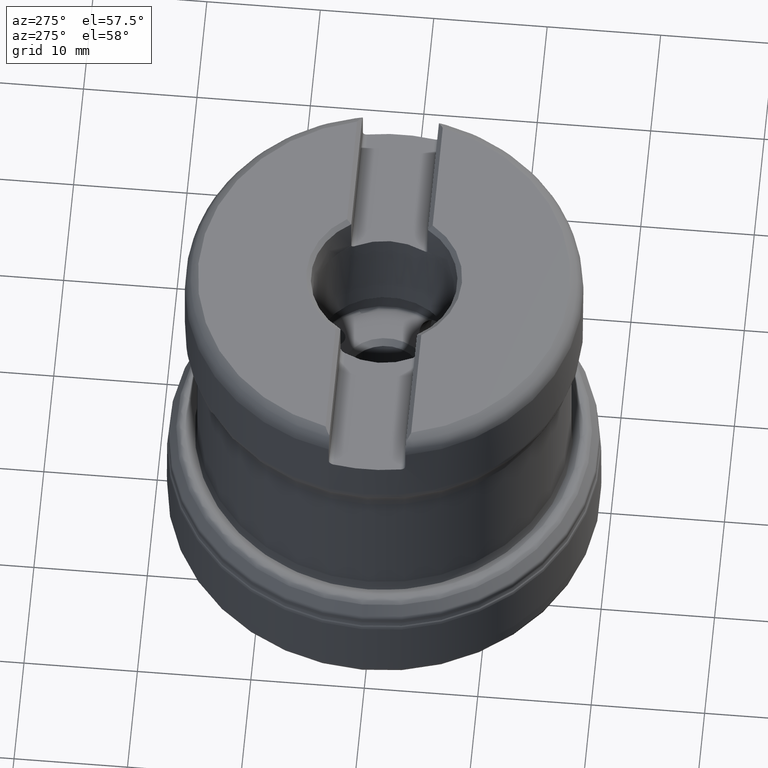
[diagram: clean part render]
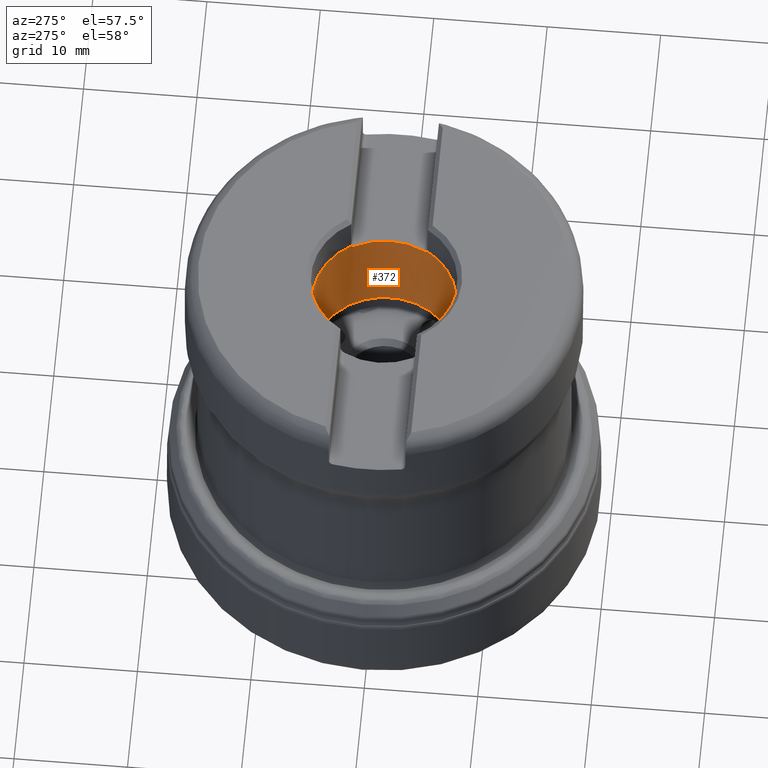
[diagram: same view with one face highlighted and labeled with its STEP entity id]
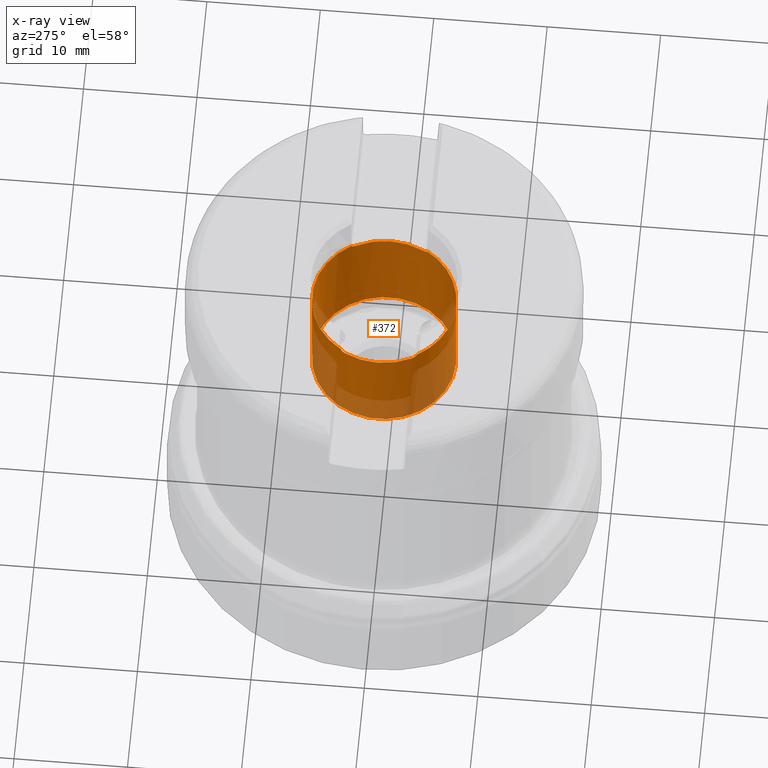
[diagram: x-ray of the same camera — body ghosted, the highlighted face saturated]
A machine part, auxiliary view. The second image highlights one B-rep face of the part: STEP entity #372.
The next image is the same camera in x-ray: the body ghosted, the highlighted face saturated — about 29% of this face is hidden behind the body in this view.
In plain terms, the highlighted cylindrical surface (bore or boss wall) has radius 6.35 mm, axis along (0, 0, 1).
Its self-contained STEP definition (entity closure, byte-faithful):
#163=CYLINDRICAL_SURFACE('',#1777,6.35);
#190=FACE_BOUND('',#557,.T.);
#191=FACE_BOUND('',#558,.T.);
#372=ADVANCED_FACE('',(#190,#191),#163,.F.);
#557=EDGE_LOOP('',(#821,#822,#823,#824,#825,#826,#827,#828));
#558=EDGE_LOOP('',(#829));
#821=ORIENTED_EDGE('',*,*,#1313,.T.);
#822=ORIENTED_EDGE('',*,*,#1332,.F.);
#823=ORIENTED_EDGE('',*,*,#1320,.T.);
#824=ORIENTED_EDGE('',*,*,#1309,.F.);
#825=ORIENTED_EDGE('',*,*,#1325,.T.);
#826=ORIENTED_EDGE('',*,*,#1333,.F.);
#827=ORIENTED_EDGE('',*,*,#1316,.T.);
#828=ORIENTED_EDGE('',*,*,#1319,.F.);
#829=ORIENTED_EDGE('',*,*,#1334,.F.);
#1130=VERTEX_POINT('',#3115);
#1131=VERTEX_POINT('',#3117);
#1133=VERTEX_POINT('',#3129);
#1134=VERTEX_POINT('',#3143);
#1135=VERTEX_POINT('',#3147);
#1136=VERTEX_POINT('',#3161);
#1138=VERTEX_POINT('',#3187);
#1141=VERTEX_POINT('',#3207);
#1144=VERTEX_POINT('',#3264);
#1309=EDGE_CURVE('',#1130,#1131,#1480,.T.);
#1313=EDGE_CURVE('',#1134,#1133,#1586,.T.);
#1316=EDGE_CURVE('',#1136,#1135,#1587,.T.);
#1319=EDGE_CURVE('',#1134,#1135,#1481,.T.);
#1320=EDGE_CURVE('',#1138,#1131,#1589,.T.);
#1325=EDGE_CURVE('',#1130,#1141,#1592,.T.);
#1332=EDGE_CURVE('',#1138,#1133,#1484,.T.);
#1333=EDGE_CURVE('',#1136,#1141,#1485,.T.);
#1334=EDGE_CURVE('',#1144,#1144,#1486,.T.);
#1480=CIRCLE('',#1757,6.35);
#1481=CIRCLE('',#1761,6.35);
#1484=CIRCLE('',#1772,6.35);
#1485=CIRCLE('',#1774,6.35);
#1486=CIRCLE('',#1776,6.35);
#1586=B_SPLINE_CURVE_WITH_KNOTS('',3,(#3130,#3131,#3132,#3133,#3134,#3135,
#3136,#3137,#3138,#3139,#3140,#3141,#3142),.UNSPECIFIED.,.F.,.F.,(4,3,3,
3,4),(0.,0.0790182769129662,0.395179230646467,0.717515965129697,1.),
 .UNSPECIFIED.);
#1587=B_SPLINE_CURVE_WITH_KNOTS('',3,(#3148,#3149,#3150,#3151,#3152,#3153,
#3154,#3155,#3156,#3157,#3158,#3159,#3160),.UNSPECIFIED.,.F.,.F.,(4,3,3,
3,4),(0.,0.256236592827539,0.510645169832214,0.79493097304882,1.),
 .UNSPECIFIED.);
#1589=B_SPLINE_CURVE_WITH_KNOTS('',3,(#3174,#3175,#3176,#3177,#3178,#3179,
#3180,#3181,#3182,#3183,#3184,#3185,#3186),.UNSPECIFIED.,.F.,.F.,(4,3,3,
3,4),(0.,0.255910278811955,0.509994869755765,0.793918638647004,1.),
 .UNSPECIFIED.);
#1592=B_SPLINE_CURVE_WITH_KNOTS('',3,(#3208,#3209,#3210,#3211,#3212,#3213,
#3214,#3215,#3216,#3217,#3218,#3219,#3220),.UNSPECIFIED.,.F.,.F.,(4,3,3,
3,4),(0.,0.321493337638323,0.643878445543097,0.948669960253119,1.),
 .UNSPECIFIED.);
#1757=AXIS2_PLACEMENT_3D('',#3116,#2024,#2025);
#1761=AXIS2_PLACEMENT_3D('',#3172,#2037,#2038);
#1772=AXIS2_PLACEMENT_3D('',#3259,#2061,#2062);
#1774=AXIS2_PLACEMENT_3D('',#3261,#2065,#2066);
#1776=AXIS2_PLACEMENT_3D('',#3263,#2069,#2070);
#1777=AXIS2_PLACEMENT_3D('',#3265,#2071,#2072);
#2024=DIRECTION('',(0.,-1.17145536458252E-15,-1.));
#2025=DIRECTION('',(0.,-1.,1.09273919746571E-15));
#2037=DIRECTION('',(0.,-1.17145536458252E-15,-1.));
#2038=DIRECTION('',(0.,-1.,1.09273919746571E-15));
#2061=DIRECTION('',(0.,-1.17145536458252E-15,-1.));
#2062=DIRECTION('',(0.,-1.,1.09273919746571E-15));
#2065=DIRECTION('',(0.,-1.17145536458252E-15,-1.));
#2066=DIRECTION('',(0.,-1.,1.09273919746571E-15));
#2069=DIRECTION('',(0.,1.17145536458252E-15,1.));
#2070=DIRECTION('',(0.,-1.,1.09273919746571E-15));
#2071=DIRECTION('',(0.,1.17145536458252E-15,1.));
#2072=DIRECTION('',(0.,-1.,1.09273919746571E-15));
#3115=CARTESIAN_POINT('',(-5.60997994648822,-2.97499999999996,30.861));
#3116=CARTESIAN_POINT('',(0.,3.61522840063813E-14,30.861));
#3117=CARTESIAN_POINT('',(-5.60997994648822,2.97500000000004,30.861));
#3129=CARTESIAN_POINT('',(5.39371471837129,3.35117017425632,31.125));
#3130=CARTESIAN_POINT('',(5.60997994648822,2.97500000000004,30.861));
#3131=CARTESIAN_POINT('',(5.60332762800572,2.98754432715449,30.861));
#3132=CARTESIAN_POINT('',(5.59662741067328,3.00007697588209,30.8615908213651));
#3133=CARTESIAN_POINT('',(5.58991423051865,3.01253363391105,30.862764860509));
#3134=CARTESIAN_POINT('',(5.56327191023647,3.0619698571628,30.8674242210763));
#3135=CARTESIAN_POINT('',(5.53593889057264,3.11103545194243,30.8815100858045));
#3136=CARTESIAN_POINT('',(5.51030251253224,3.15579882444701,30.9041922295148));
#3137=CARTESIAN_POINT('',(5.4842280906993,3.20132705996882,30.9272619385918));
#3138=CARTESIAN_POINT('',(5.45908899436671,3.24383920877791,30.9600486020292));
#3139=CARTESIAN_POINT('',(5.43814518708048,3.27857849139434,31.0005386793346));
#3140=CARTESIAN_POINT('',(5.41977925217315,3.30904188300894,31.0360450280143));
#3141=CARTESIAN_POINT('',(5.40410258225685,3.33445088773294,31.0787551696696));
#3142=CARTESIAN_POINT('',(5.39371471837129,3.35117017425632,31.125));
#3143=CARTESIAN_POINT('',(5.60997994648822,2.97500000000004,30.861));
#3147=CARTESIAN_POINT('',(5.60997994648822,-2.97499999999996,30.861));
#3148=CARTESIAN_POINT('',(5.39371471837129,-3.35117017425624,31.125));
#3149=CARTESIAN_POINT('',(5.40313444169226,-3.33600911179824,31.0830651506858));
#3150=CARTESIAN_POINT('',(5.41687653282457,-3.31374708615988,31.0440499883782));
#3151=CARTESIAN_POINT('',(5.43300801337561,-3.28708441123683,31.0107934448042));
#3152=CARTESIAN_POINT('',(5.44906915238264,-3.26053799927648,30.9776819168484));
#3153=CARTESIAN_POINT('',(5.46787272028658,-3.22899731185927,30.9493101118303));
#3154=CARTESIAN_POINT('',(5.48771773574965,-3.19491064863143,30.9268753127671));
#3155=CARTESIAN_POINT('',(5.50987196290544,-3.15685758278537,30.9018299488285));
#3156=CARTESIAN_POINT('',(5.53385258288437,-3.11471122185396,30.8835432201152));
#3157=CARTESIAN_POINT('',(5.55779563329648,-3.0713853060973,30.8727863052795));
#3158=CARTESIAN_POINT('',(5.5751635762933,-3.03995731249601,30.8649833946031));
#3159=CARTESIAN_POINT('',(5.59276442114701,-3.00746344602768,30.861));
#3160=CARTESIAN_POINT('',(5.60997994648822,-2.97499999999996,30.861));
#3161=CARTESIAN_POINT('',(5.39371471837129,-3.35117017425624,31.125));
#3172=CARTESIAN_POINT('',(0.,3.61522840063813E-14,30.861));
#3174=CARTESIAN_POINT('',(-5.39371471837129,3.35117017425632,31.125));
#3175=CARTESIAN_POINT('',(-5.40313444169226,3.33600911179832,31.0830651506858));
#3176=CARTESIAN_POINT('',(-5.41687653282457,3.31374708615995,31.0440499883782));
#3177=CARTESIAN_POINT('',(-5.43300801337561,3.28708441123691,31.0107934448042));
#3178=CARTESIAN_POINT('',(-5.44906915238264,3.26053799927655,30.9776819168484));
#3179=CARTESIAN_POINT('',(-5.46787272028657,3.22899731185935,30.9493101118303));
#3180=CARTESIAN_POINT('',(-5.48771773574965,3.19491064863151,30.9268753127671));
#3181=CARTESIAN_POINT('',(-5.50987196290543,3.15685758278545,30.9018299488285));
#3182=CARTESIAN_POINT('',(-5.53385258288437,3.11471122185404,30.8835432201152));
#3183=CARTESIAN_POINT('',(-5.55779563329648,3.07138530609737,30.8727863052795));
#3184=CARTESIAN_POINT('',(-5.5751635762933,3.03995731249609,30.8649833946031));
#3185=CARTESIAN_POINT('',(-5.59276442114701,3.00746344602775,30.861));
#3186=CARTESIAN_POINT('',(-5.60997994648822,2.97500000000004,30.861));
#3187=CARTESIAN_POINT('',(-5.39371471837129,3.35117017425632,31.125));
#3207=CARTESIAN_POINT('',(-5.3937147183713,-3.35117017425624,31.125));
#3208=CARTESIAN_POINT('',(-5.60997994648822,-2.97499999999996,30.861));
#3209=CARTESIAN_POINT('',(-5.58314279396001,-3.02560702100976,30.861));
#3210=CARTESIAN_POINT('',(-5.55521280895035,-3.07652997452055,30.8707885960295));
#3211=CARTESIAN_POINT('',(-5.5286040168589,-3.12362571777916,30.8896371100734));
#3212=CARTESIAN_POINT('',(-5.50195740950471,-3.17078839146812,30.908512410809));
#3213=CARTESIAN_POINT('',(-5.47581510678833,-3.2155703017076,30.9371074189299));
#3214=CARTESIAN_POINT('',(-5.45322833378128,-3.2534290740148,30.9738114717764));
#3215=CARTESIAN_POINT('',(-5.43191398178151,-3.28915508051351,31.0084478096873));
#3216=CARTESIAN_POINT('',(-5.41308607491115,-3.31988239380425,31.0516800717963));
#3217=CARTESIAN_POINT('',(-5.39998542049907,-3.34105633870446,31.0997462964944));
#3218=CARTESIAN_POINT('',(-5.39773334394987,-3.3446962595255,31.1080091522302));
#3219=CARTESIAN_POINT('',(-5.39563805520082,-3.34807456000022,31.1164376635727));
#3220=CARTESIAN_POINT('',(-5.3937147183713,-3.35117017425624,31.125));
#3259=CARTESIAN_POINT('',(0.,3.64615482226311E-14,31.125));
#3261=CARTESIAN_POINT('',(0.,3.64615482226311E-14,31.125));
#3263=CARTESIAN_POINT('',(0.,2.53842662951387E-14,21.669));
#3264=CARTESIAN_POINT('',(0.,-6.34999999999998,21.669));
#3265=CARTESIAN_POINT('',(0.,4.11473696809612E-14,35.125));